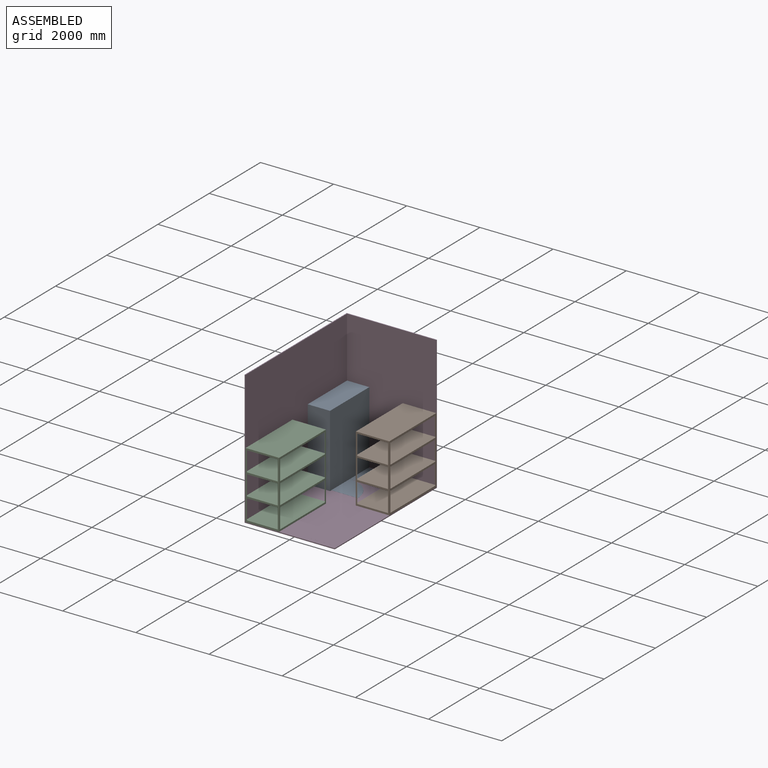
[diagram: assembled view]
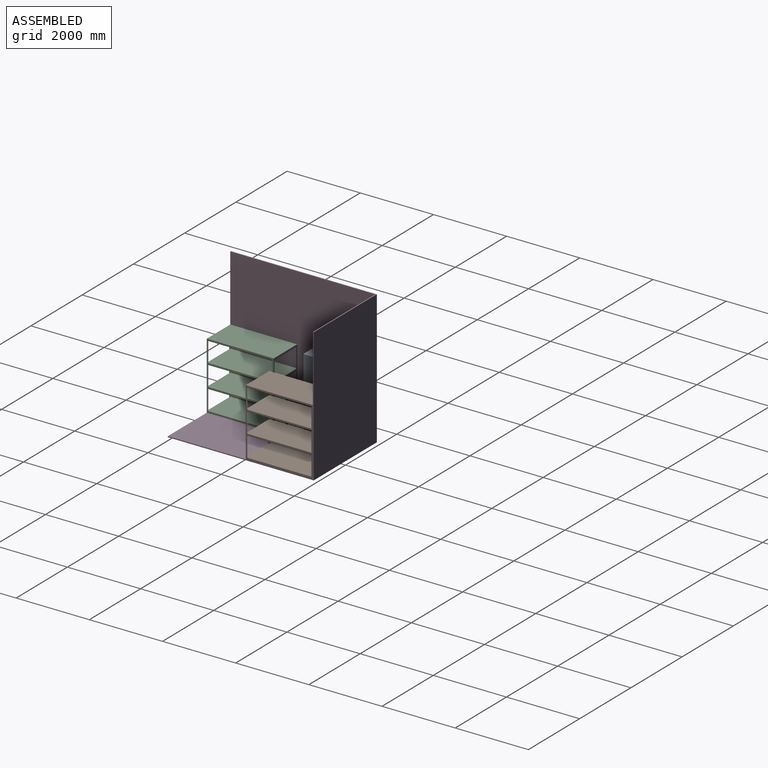
[diagram: assembled view, second angle]
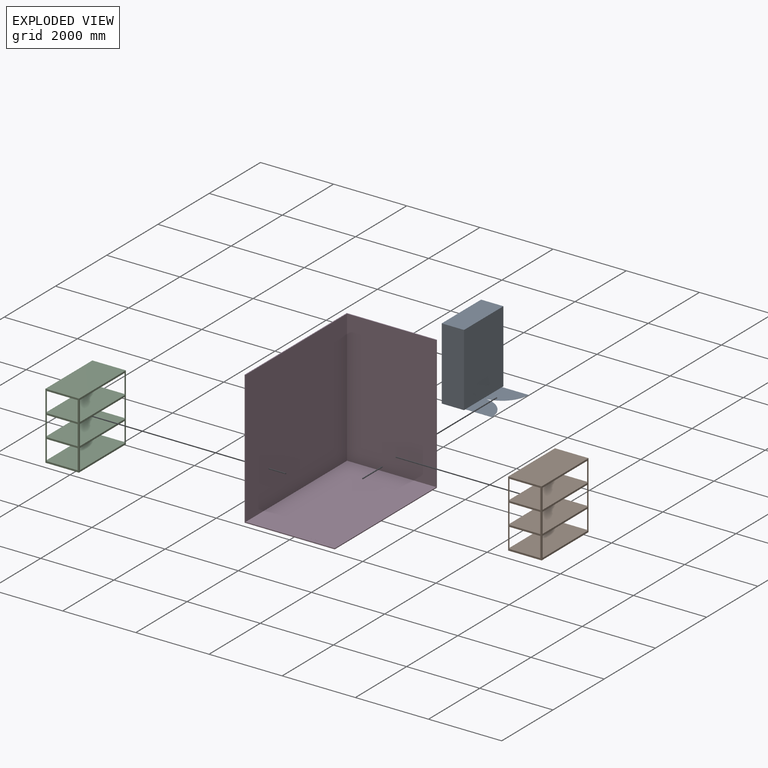
[diagram: exploded view]
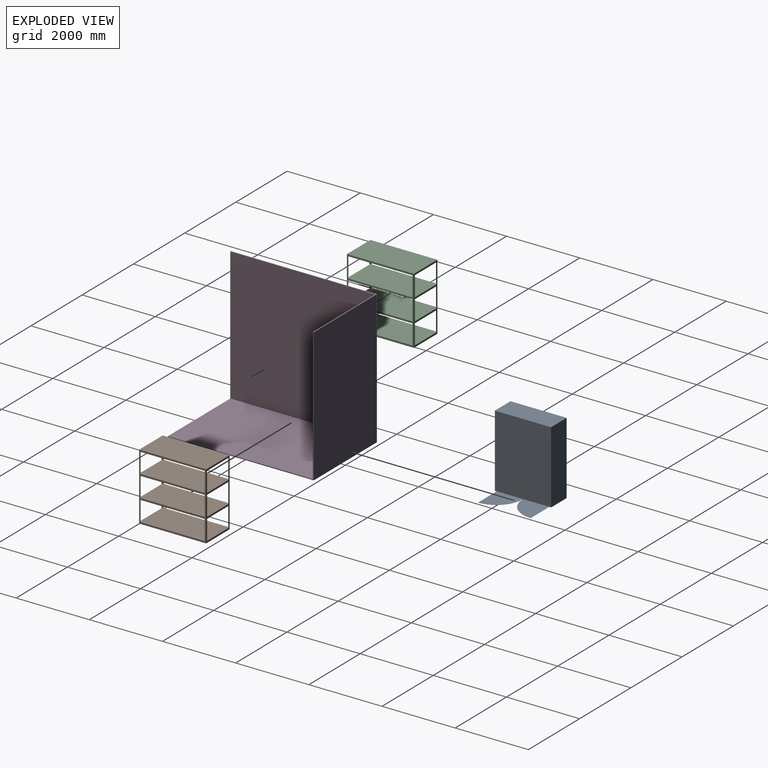
[diagram: exploded view, second angle]
ASSEMBLY  parts=4 mates=3
PART A: 12 faces, bbox 1536.7x1333.5x1981.2 mm
  f0: plane 1981.2x1536.7mm, normal (0,-1,0), area 3040864.9mm2, adj f1,f2,f4,f5,f6,f7,f8,f9
  f1: plane 1981.2x609.6mm, normal (-1,0,0), area 1207739.5mm2, adj f0,f3,f4,f5
  f2: plane 1981.2x609.6mm, normal (1,0,0), area 1207739.5mm2, adj f0,f3,f4,f5
  f3: plane 1981.2x1536.7mm, normal (0,1,0), area 3044510mm2, adj f1,f2,f4,f5
  f4: plane 1536.7x609.6mm, normal (0,0,1), area 936772.3mm2, adj f0,f1,f2,f3
  f5: plane 1536.7x1333.5mm, normal (0,0,-1), area 1750765.2mm2, adj f0,f1,f2,f3,f6,f7,f10,f11
  f6: plane 723.9x2.54mm, normal (-1,0,0), area 1838.7mm2, adj f0,f5,f9,f11
  f7: plane 723.9x2.54mm, normal (1,0,0), area 1838.7mm2, adj f0,f5,f8,f10
  f8: plane 723.9x717.55mm, normal (0,0,1), area 406996.4mm2, adj f0,f7,f10
  f9: plane 723.9x717.55mm, normal (0,0,1), area 406996.4mm2, adj f0,f6,f11
  f10: cylinder r=723.9mm len=723.9mm, axis (0,0,-1), area 2872.2mm2, adj f5,f7,f8,f11
  f11: cylinder r=723.9mm len=723.9mm, axis (0,0,-1), area 2872.2mm2, adj f5,f6,f9,f10
PART B: 68 faces, bbox 916.9x1831.3x1828.9 mm
  f0: plane 546.1x36.83mm, normal (0,1,0), area 20112.9mm2, adj f1,f30,f60,f67
  f1: plane 546.1x36.83mm, normal (-1,0,0), area 20112.9mm2, adj f0,f33,f60,f67
  f2: plane 546.1x36.83mm, normal (0,1,0), area 20112.9mm2, adj f3,f38,f60,f67
  f3: plane 546.1x36.83mm, normal (1,0,0), area 20112.9mm2, adj f2,f35,f60,f67
  f4: plane 546.1x36.83mm, normal (1,0,0), area 20112.9mm2, adj f5,f43,f60,f67
  f5: plane 546.1x36.83mm, normal (0,-1,0), area 20112.9mm2, adj f4,f40,f60,f67
  f6: plane 546.1x36.83mm, normal (-1,0,0), area 20112.9mm2, adj f7,f46,f60,f67
  f7: plane 546.1x36.83mm, normal (0,-1,0), area 20112.9mm2, adj f6,f45,f60,f67
  f8: plane 546.1x36.83mm, normal (0,1,0), area 20112.9mm2, adj f9,f30,f54,f61
  f9: plane 546.1x36.83mm, normal (-1,0,0), area 20112.9mm2, adj f8,f33,f54,f61
  f10: plane 546.1x36.83mm, normal (0,1,0), area 20112.9mm2, adj f11,f38,f54,f61
  f11: plane 546.1x36.83mm, normal (1,0,0), area 20112.9mm2, adj f10,f35,f54,f61
  f12: plane 546.1x36.83mm, normal (1,0,0), area 20112.9mm2, adj f13,f43,f54,f61
  f13: plane 546.1x36.83mm, normal (0,-1,0), area 20112.9mm2, adj f12,f40,f54,f61
  f14: plane 546.1x36.83mm, normal (-1,0,0), area 20112.9mm2, adj f15,f46,f54,f61
  f15: plane 546.1x36.83mm, normal (0,-1,0), area 20112.9mm2, adj f14,f45,f54,f61
  f16: plane 546.1x36.83mm, normal (0,1,0), area 20112.9mm2, adj f17,f28,f30,f55
  f17: plane 546.1x36.83mm, normal (-1,0,0), area 20112.9mm2, adj f16,f28,f33,f55
  f18: plane 546.1x36.83mm, normal (0,1,0), area 20112.9mm2, adj f19,f28,f38,f55
  f19: plane 546.1x36.83mm, normal (1,0,0), area 20112.9mm2, adj f18,f28,f35,f55
  f20: plane 546.1x36.83mm, normal (1,0,0), area 20112.9mm2, adj f21,f28,f43,f55
  f21: plane 546.1x36.83mm, normal (0,-1,0), area 20112.9mm2, adj f20,f28,f40,f55
  f22: plane 546.1x36.83mm, normal (-1,0,0), area 20112.9mm2, adj f23,f28,f46,f55
  f23: plane 546.1x36.83mm, normal (0,-1,0), area 20112.9mm2, adj f22,f28,f45,f55
  f24: plane 840.74x47.63mm, normal (0,1,0), area 40040.2mm2, adj f28,f29,f40,f45
  f25: plane 1755.14x47.63mm, normal (-1,0,0), area 83588.5mm2, adj f28,f29,f35,f43
  f26: plane 840.74x47.63mm, normal (0,-1,0), area 40040.2mm2, adj f28,f29,f30,f38
  f27: plane 1755.14x47.63mm, normal (1,0,0), area 83588.5mm2, adj f28,f29,f33,f46
  f28: plane 1828.8x914.4mm, normal (0,0,1), area 1672254.7mm2, adj f16,f17,f18,f19,f20,f21,f22,f23
  f29: plane 1831.34x916.94mm, normal (0,0,-1), area 1672635.4mm2, adj f24,f25,f26,f27,f30,f31,f32,f33
  f30: plane 1828.8x1.27mm, normal (-1,0,0), area 2322.6mm2, adj f0,f8,f16,f26,f29,f31,f34,f50
  f31: plane 1828.8x38.1mm, normal (0,-1,0), area 69677.3mm2, adj f29,f30,f32,f34
  f32: plane 1828.8x38.1mm, normal (1,0,0), area 69677.3mm2, adj f29,f31,f33,f34
  f33: plane 1828.8x1.27mm, normal (0,1,0), area 2322.6mm2, adj f1,f9,f17,f27,f29,f32,f34,f52
  f34: plane 38.1x38.1mm, normal (0,0,1), area 95.2mm2, adj f30,f31,f32,f33,f62,f64
  f35: plane 1828.8x1.27mm, normal (0,1,0), area 2322.6mm2, adj f3,f11,f19,f25,f29,f36,f39,f51
  f36: plane 1828.8x38.1mm, normal (-1,0,0), area 69677.3mm2, adj f29,f35,f37,f39
  f37: plane 1828.8x38.1mm, normal (0,-1,0), area 69677.3mm2, adj f29,f36,f38,f39
  f38: plane 1828.8x1.27mm, normal (1,0,0), area 2322.6mm2, adj f2,f10,f18,f26,f29,f37,f39,f50
  f39: plane 38.1x38.1mm, normal (0,0,1), area 95.2mm2, adj f35,f36,f37,f38,f62,f63
  f40: plane 1828.8x1.27mm, normal (1,0,0), area 2322.6mm2, adj f5,f13,f21,f24,f29,f41,f44,f53
  f41: plane 1828.8x38.1mm, normal (0,1,0), area 69677.3mm2, adj f29,f40,f42,f44
  f42: plane 1828.8x38.1mm, normal (-1,0,0), area 69677.3mm2, adj f29,f41,f43,f44
  f43: plane 1828.8x1.27mm, normal (0,-1,0), area 2322.6mm2, adj f4,f12,f20,f25,f29,f42,f44,f51
  f44: plane 38.1x38.1mm, normal (0,0,1), area 95.2mm2, adj f40,f41,f42,f43,f63,f65
  f45: plane 1828.8x1.27mm, normal (-1,0,0), area 2322.6mm2, adj f7,f15,f23,f24,f29,f48,f49,f53
  f46: plane 1828.8x1.27mm, normal (0,-1,0), area 2322.6mm2, adj f6,f14,f22,f27,f29,f47,f49,f52
  f47: plane 1828.8x38.1mm, normal (1,0,0), area 69677.3mm2, adj f29,f46,f48,f49
  f48: plane 1828.8x38.1mm, normal (0,1,0), area 69677.3mm2, adj f29,f45,f47,f49
  f49: plane 38.1x38.1mm, normal (0,0,1), area 95.2mm2, adj f45,f46,f47,f48,f64,f65
  f50: plane 840.74x47.63mm, normal (0,-1,0), area 40040.2mm2, adj f30,f38,f54,f55
  f51: plane 1755.14x47.63mm, normal (-1,0,0), area 83588.5mm2, adj f35,f43,f54,f55
  f52: plane 1755.14x47.63mm, normal (1,0,0), area 83588.5mm2, adj f33,f46,f54,f55
  f53: plane 840.74x47.63mm, normal (0,1,0), area 40040.2mm2, adj f40,f45,f54,f55
  f54: plane 1828.8x914.4mm, normal (0,0,1), area 1672254.7mm2, adj f8,f9,f10,f11,f12,f13,f14,f15
  f55: plane 1828.8x914.4mm, normal (0,0,-1), area 1672254.7mm2, adj f16,f17,f18,f19,f20,f21,f22,f23
  f56: plane 840.74x47.63mm, normal (0,-1,0), area 40040.2mm2, adj f30,f38,f60,f61
  f57: plane 1755.14x47.63mm, normal (-1,0,0), area 83588.5mm2, adj f35,f43,f60,f61
  f58: plane 1755.14x47.63mm, normal (1,0,0), area 83588.5mm2, adj f33,f46,f60,f61
  f59: plane 840.74x47.63mm, normal (0,1,0), area 40040.2mm2, adj f40,f45,f60,f61
  f60: plane 1828.8x914.4mm, normal (0,0,1), area 1672254.7mm2, adj f0,f1,f2,f3,f4,f5,f6,f7
  f61: plane 1828.8x914.4mm, normal (0,0,-1), area 1672254.7mm2, adj f8,f9,f10,f11,f12,f13,f14,f15
  f62: plane 914.4x47.7mm, normal (0,-1,0), area 40109.9mm2, adj f30,f34,f38,f39,f63,f64,f66,f67
  f63: plane 1828.8x47.7mm, normal (-1,0,0), area 83727.9mm2, adj f35,f39,f43,f44,f62,f65,f66,f67
  f64: plane 1828.8x47.7mm, normal (1,0,0), area 83727.9mm2, adj f33,f34,f46,f49,f62,f65,f66,f67
  f65: plane 914.4x47.7mm, normal (0,1,0), area 40109.9mm2, adj f40,f44,f45,f49,f63,f64,f66,f67
  f66: plane 1828.8x914.4mm, normal (0,0,1), area 1672254.7mm2, adj f62,f63,f64,f65
  f67: plane 1828.8x914.4mm, normal (0,0,-1), area 1672254.7mm2, adj f0,f1,f2,f3,f4,f5,f6,f7
PART C: same geometry as B
PART D: 12 faces, bbox 2463.8x3987.8x3657.6 mm
  f0: plane 3962.4x2438.4mm, normal (0,0,1), area 9058807.6mm2, adj f2,f5,f7,f8,f9,f10
  f1: plane 3987.8x2463.8mm, normal (0,0,1), area 163225.5mm2, adj f2,f3,f4,f5,f7,f8
  f2: plane 3987.8x3657.6mm, normal (1,0,0), area 193993.2mm2, adj f0,f1,f3,f5,f6,f7,f9,f10
  f3: plane 3657.6x2463.8mm, normal (0,1,0), area 9011594.9mm2, adj f1,f2,f4,f6
  f4: plane 3987.8x3657.6mm, normal (-1,0,0), area 14585777.3mm2, adj f1,f3,f5,f6
  f5: plane 3657.6x2463.8mm, normal (0,-1,0), area 154838.4mm2, adj f0,f1,f2,f4,f6,f8
  f6: plane 3987.8x2463.8mm, normal (0,0,-1), area 9825141.6mm2, adj f2,f3,f4,f5
  f7: plane 3632.2x2438.4mm, normal (0,-1,0), area 8856756.5mm2, adj f0,f1,f2,f8
  f8: plane 3962.4x3632.2mm, normal (1,0,0), area 14392229.3mm2, adj f0,f1,f5,f7
  f9: cylinder r=876.3mm len=876.3mm, axis (0,0,-1), area 699.3mm2, adj f0,f2,f10,f11
  f10: plane 876.3x0.51mm, normal (0,-1,0), area 445.2mm2, adj f0,f2,f9,f11
  f11: plane 876.3x876.3mm, normal (0,0,1), area 603108.6mm2, adj f2,f9,f10
PLACE A rot(axis=(0,0,1),90deg) t=(-901.7,1200.15,25.4)mm
PLACE B t=(773.43,1052.83,25.4)mm
PLACE C t=(-748.03,-1078.23,25.4)mm
PLACE D at identity fixed
MATE fastened A.f2 <-> D.f7  axis (0,1,0) through (-1206.5,1968.5,25.4)mm
MATE fastened B.f47 <-> D.f2  axis (1,0,0) through (1231.9,1968.5,25.4)mm
MATE fastened C.f36 <-> D.f8  axis (1,0,0) through (-1206.5,-1993.9,25.4)mm
